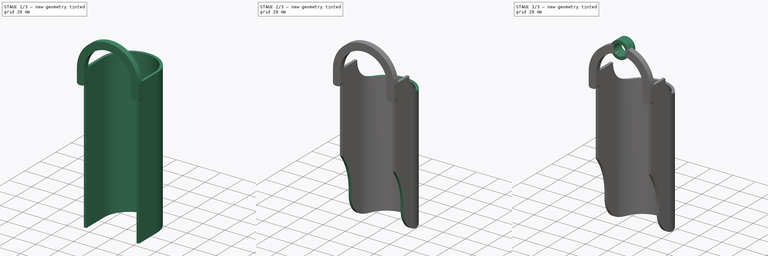
[diagram: build sequence overview — one tinted view per stage of 3, left to right]
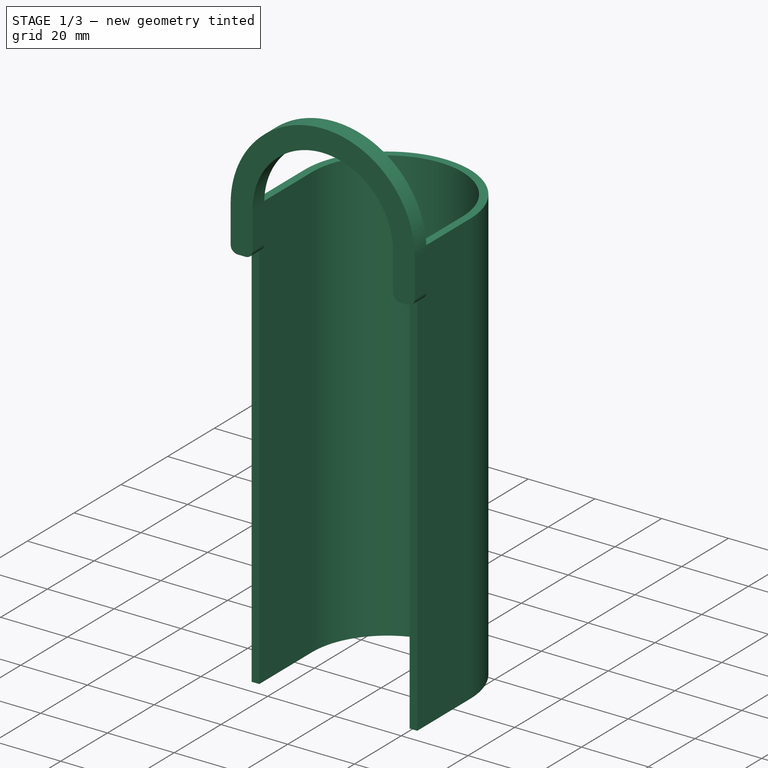
[diagram: stage 1 of 3 — iso view after this stage's code; geometry added in this stage tinted green]
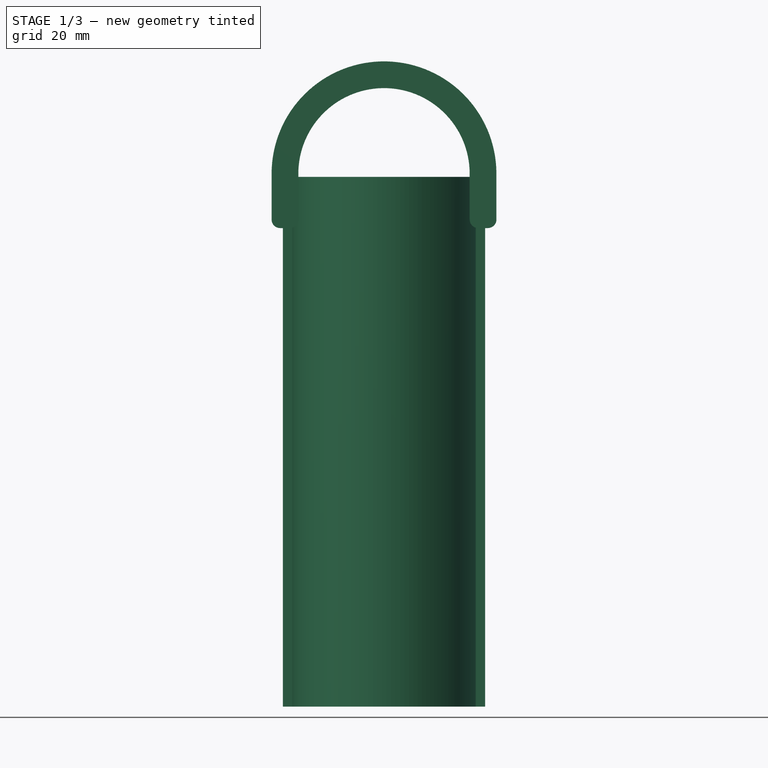
[diagram: stage 1 of 3 — front view after this stage's code; geometry added in this stage tinted green]
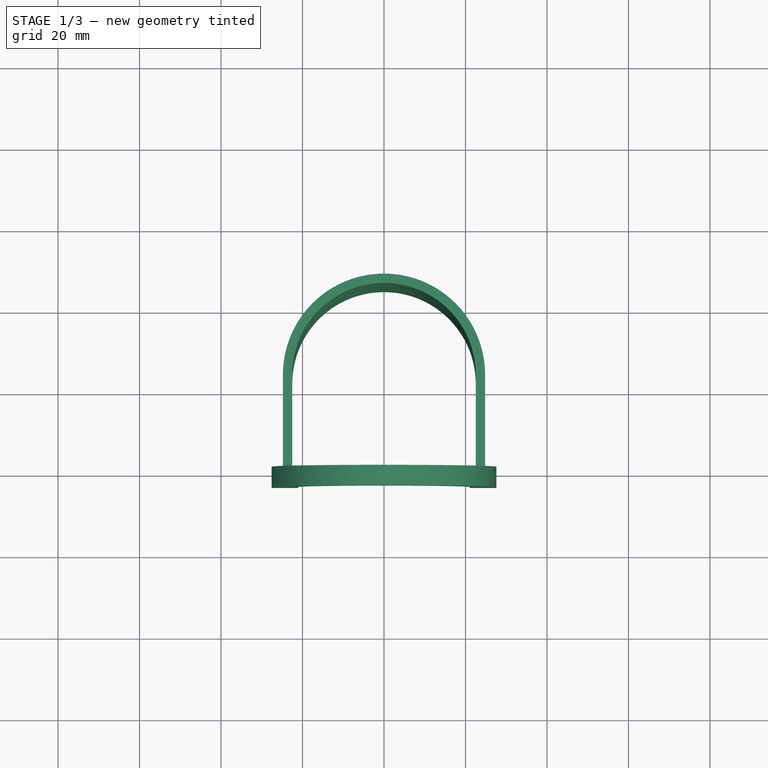
[diagram: stage 1 of 3 — top view after this stage's code; geometry added in this stage tinted green]
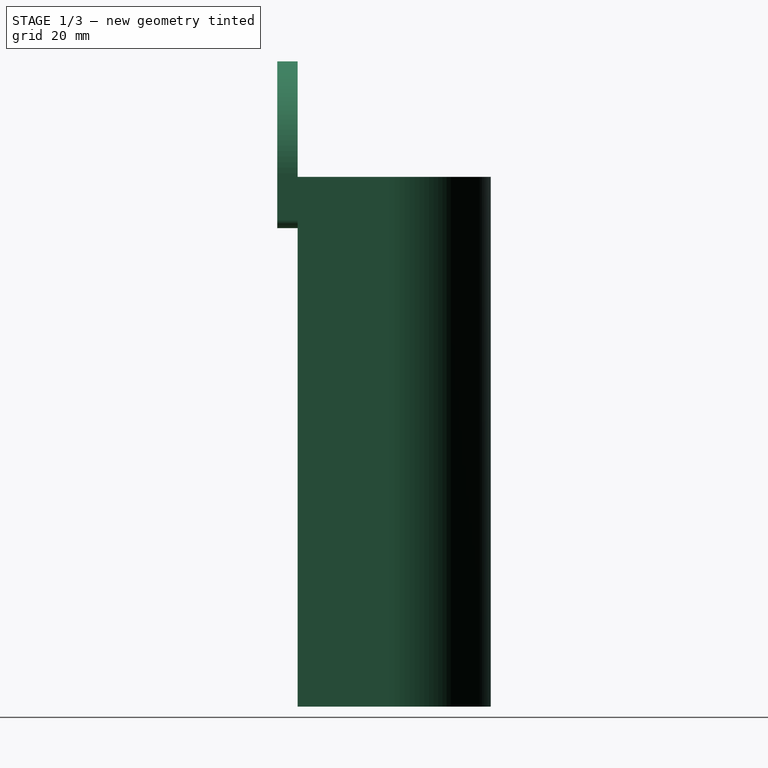
[diagram: stage 1 of 3 — right view after this stage's code; geometry added in this stage tinted green]
FCSTD DOCUMENT  (FreeCAD 0.21R33771 (Git))
Label: ex03
License: All rights reserved
LicenseURL: https://en.wikipedia.org/wiki/All_rights_reserved
objects: Sketcher::SketchObject×6, PartDesign::Pocket×4, PartDesign::Pad×3, PartDesign::Plane×1, PartDesign::Chamfer×1, PartDesign::Body×1
note: 24 computed .brp shape members not serialized (recipe doc carries the construction recipe); baked Part::Feature solids carry a one-line shape summary decoded from their .brp

FEATURE [Sketcher::SketchObject] Sketch
  FullyConstrained = false
  MapMode = 5
  Support = -> [XY_Plane]
  sketch-geometry (4):
    g0: LineSegment StartX=-24.8055 StartY=0 StartZ=0 EndX=24.8055 EndY=0 EndZ=0
    g1: LineSegment StartX=24.8055 StartY=0 StartZ=0 EndX=24.8055 EndY=22.6115 EndZ=0
    g2: LineSegment StartX=-24.8055 StartY=22.6115 StartZ=0 EndX=-24.8055 EndY=0 EndZ=0
    g3: ArcOfCircle CenterX=-3e-16 CenterY=22.6115 CenterZ=0 NormalX=0 NormalY=0 NormalZ=1 AngleXU=0 Radius=24.8055 StartAngle=0 EndAngle=3.14159
  constraints (7):
    c: Coincident(g0,g1)
    c: Coincident(g2,g0)
    c: Vertical(g1)
    c: Vertical(g2)
    c: PointOnObject(g0,g-1)
    c: Symmetric(g0,g0,g-2)
    c: Coincident(g3,g1)
FEATURE [PartDesign::Pad] Pad
  Direction = (0,0,1)
  Length = 130
  Length2 = 10
  Profile = -> Sketch
  ReferenceAxis = -> Sketch [N_Axis]
  Type = 0
FEATURE [Sketcher::SketchObject] Sketch001
  FullyConstrained = false
  MapMode = 5
  Support = -> [XY_Plane]
  sketch-geometry (4):
    g0: LineSegment StartX=-22.5156 StartY=0 StartZ=0 EndX=22.5156 EndY=0 EndZ=0
    g1: LineSegment StartX=22.5156 StartY=0 StartZ=0 EndX=22.5156 EndY=22.6115 EndZ=0
    g2: LineSegment StartX=-22.5156 StartY=22.7182 StartZ=0 EndX=-22.5156 EndY=0 EndZ=0
    g3: ArcOfCircle CenterX=-0.000128854 CenterY=22.6105 CenterZ=0 NormalX=0 NormalY=0 NormalZ=1 AngleXU=0 Radius=22.5158 StartAngle=4.39106e-05 EndAngle=3.13681
  constraints (8):
    c: Coincident(g0,g1)
    c: Coincident(g2,g0)
    c: Vertical(g1)
    c: Vertical(g2)
    c: PointOnObject(g0,g-1)
    c: Symmetric(g0,g0,g-2)
    c: Coincident(g3,g1)
    c: Coincident(g3,g2)
FEATURE [Sketcher::SketchObject] Sketch002
  FullyConstrained = false
  MapMode = 5
  Placement = pos=(0,0,0) rot=(1,0,0;1.5708rad)
  Support = -> [Pad]
  sketch-geometry (12):
    g0: LineSegment StartX=27.5859 StartY=130.883 StartZ=0 EndX=27.5859 EndY=119.525 EndZ=0
    g1: LineSegment StartX=25.4901 StartY=117.43 StartZ=0 EndX=23.1216 EndY=117.43 EndZ=0
    g2: LineSegment StartX=-27.5859 StartY=119.525 StartZ=0 EndX=-27.5859 EndY=130.883 EndZ=0
    g3: LineSegment StartX=-21.0259 StartY=119.525 StartZ=0 EndX=-21.0259 EndY=130.883 EndZ=0
    g4: LineSegment StartX=21.0259 StartY=130.883 StartZ=0 EndX=21.0259 EndY=119.525 EndZ=0
    g5: ArcOfCircle CenterX=0 CenterY=130.749 CenterZ=0 NormalX=0 NormalY=0 NormalZ=1 AngleXU=0 Radius=27.5862 StartAngle=0.00485634 EndAngle=3.13674
    g6: LineSegment StartX=-23.1216 StartY=117.43 StartZ=0 EndX=-25.4901 EndY=117.43 EndZ=0
    g7: ArcOfCircle CenterX=-25.4901 CenterY=119.525 CenterZ=0 NormalX=0 NormalY=0 NormalZ=1 AngleXU=0 Radius=2.09573 StartAngle=3.14159 EndAngle=4.71239
    g8: ArcOfCircle CenterX=-23.1216 CenterY=119.525 CenterZ=0 NormalX=0 NormalY=0 NormalZ=1 AngleXU=0 Radius=2.09573 StartAngle=4.71239 EndAngle=6.28319
    g9: ArcOfCircle CenterX=23.1216 CenterY=119.525 CenterZ=0 NormalX=0 NormalY=0 NormalZ=1 AngleXU=0 Radius=2.09573 StartAngle=3.14159 EndAngle=4.71239
    g10: ArcOfCircle CenterX=25.4901 CenterY=119.525 CenterZ=0 NormalX=0 NormalY=0 NormalZ=1 AngleXU=0 Radius=2.09573 StartAngle=4.71239 EndAngle=6.28319
    g11: ArcOfCircle CenterX=0 CenterY=130.749 CenterZ=0 NormalX=0 NormalY=0 NormalZ=1 AngleXU=0 Radius=21.0263 StartAngle=0.00637146 EndAngle=3.13522
  constraints (28):
    c: Vertical(g0)
    c: Vertical(g2)
    c: Vertical(g3)
    c: Vertical(g4)
    c: Horizontal(g3,g2)
    c: Coincident(g5,g2)
    c: Coincident(g5,g0)
    c: Tangent(g2,g7) = 1.5708
    c: Tangent(g6,g7) = 1.5708
    c: Tangent(g3,g8) = -1.5708
    c: Tangent(g6,g8) = 1.5708
    c: Tangent(g4,g9) = -1.5708
    c: Tangent(g1,g9) = 1.5708
    c: Tangent(g0,g10) = 1.5708
    c: Tangent(g1,g10) = 1.5708
    c: Equal(g10,g8)
    c: Equal(g8,g9)
    c: Equal(g9,g7)
    c: Coincident(g11,g3)
    c: PointOnObject(g5,g-2)
    c: Horizontal(g2,g0)
    c: Horizontal(g3,g11)
    c: Coincident(g11,g5)
    c: DistanceX(g2,g3) = 6.56
    c: Horizontal(g7,g8)
    c: Horizontal(g9,g10)
    c: Horizontal(g9,g8)
    c: Coincident(g11,g4)
FEATURE [PartDesign::Pocket] Pocket
  BaseFeature = -> Pad
  Direction = (0,0,-1)
  Length = 5
  Length2 = 5
  Midplane = true
  Profile = -> Sketch001
  ReferenceAxis = -> Sketch001 [N_Axis]
  Type = 1
FEATURE [PartDesign::Pad] Pad001
  BaseFeature = -> Pocket
  Direction = (0,-1,2e-16)
  Length = 5
  Length2 = 10
  Profile = -> Sketch002
  ReferenceAxis = -> Sketch002 [N_Axis]
  Type = 0
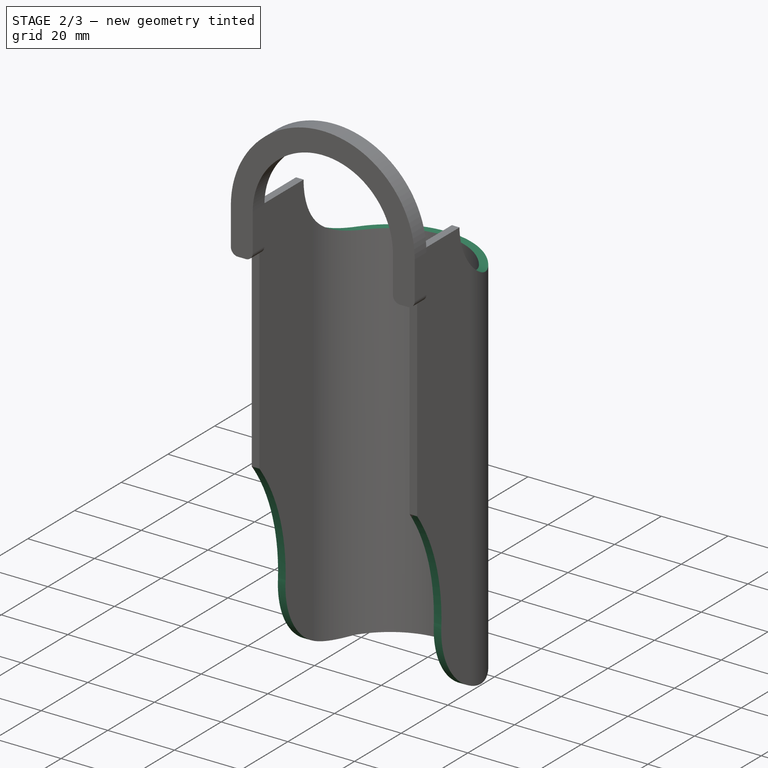
[diagram: stage 2 of 3 — iso view after this stage's code; geometry added in this stage tinted green]
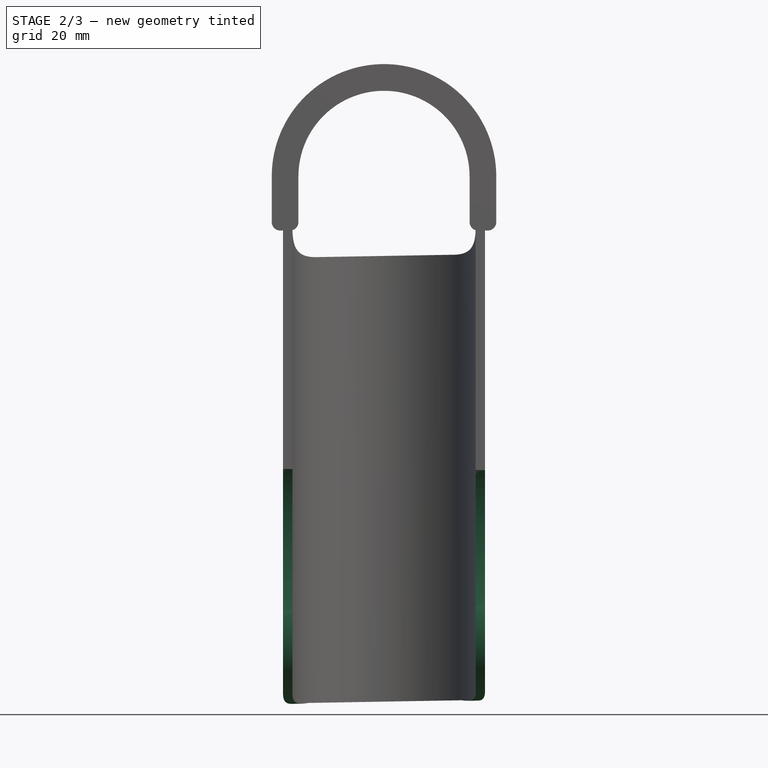
[diagram: stage 2 of 3 — front view after this stage's code; geometry added in this stage tinted green]
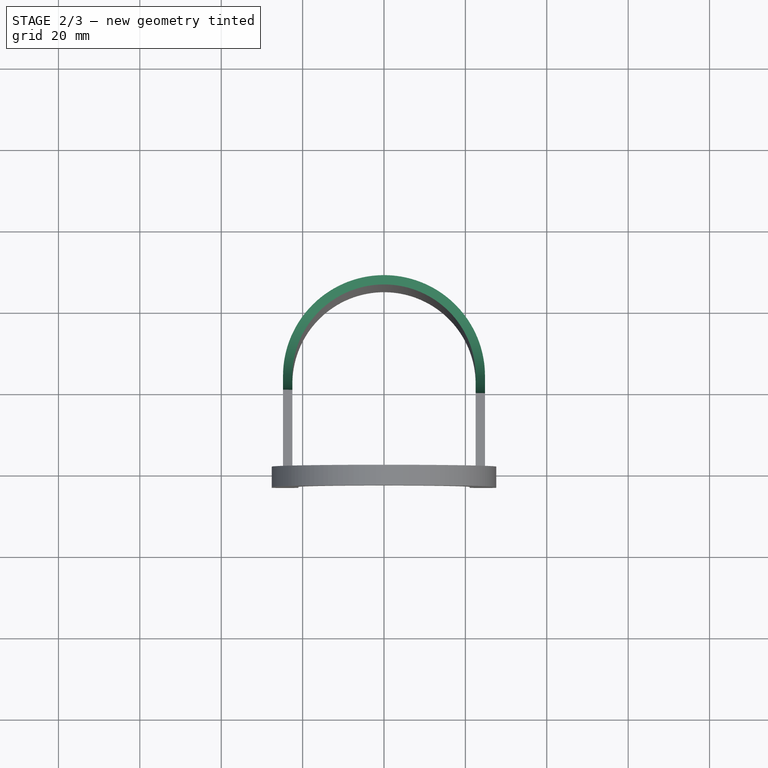
[diagram: stage 2 of 3 — top view after this stage's code; geometry added in this stage tinted green]
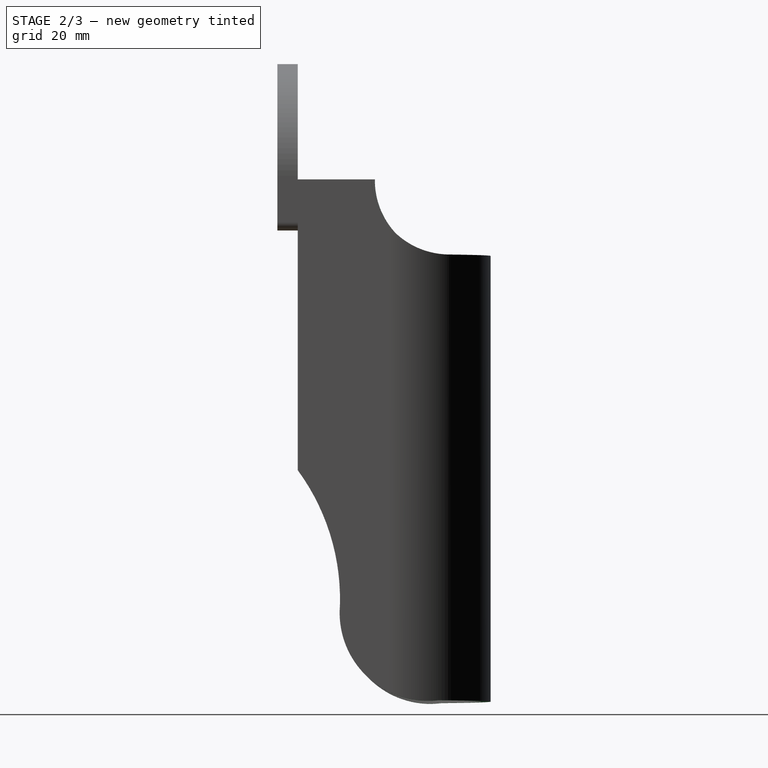
[diagram: stage 2 of 3 — right view after this stage's code; geometry added in this stage tinted green]
FEATURE [PartDesign::Plane] DatumPlane
  AttachmentOffset = pos=(2,0,0) rot=(0.008726,0.999925,-0.008575;1.58832rad)
  Length = 96.9647
  MapMode = 45
  Placement = pos=(2,38.4032,65) rot=(-0.567186,0.57735,-0.587338;2.0944rad)
  ResizeMode = 0
  Support = -> [Pad001]
  Width = 212.323
FEATURE [Sketcher::SketchObject] Sketch003
  ExternalGeometry = -> [Pad001]
  FullyConstrained = false
  MapMode = 5
  Placement = pos=(2,38.4032,65) rot=(0.567186,-0.57735,0.587338;4.18879rad)
  Support = -> [DatumPlane]
  sketch-geometry (4):
    g0: ArcOfCircle CenterX=-56.3496 CenterY=-65.2195 CenterZ=0 NormalX=0 NormalY=0 NormalZ=1 AngleXU=0 Radius=19 StartAngle=1.5708 EndAngle=4.71239
    g1: ArcOfCircle CenterX=0.893863 CenterY=-65.2195 CenterZ=0 NormalX=0 NormalY=0 NormalZ=1 AngleXU=0 Radius=19 StartAngle=4.71239 EndAngle=7.85398
    g2: LineSegment StartX=-56.3496 StartY=-84.2195 StartZ=0 EndX=0.893863 EndY=-84.2195 EndZ=0
    g3: LineSegment StartX=0.893863 StartY=-46.2195 StartZ=0 EndX=-56.3496 EndY=-46.2195 EndZ=0
  constraints (8):
    c: Tangent(g0,g2) = -1.5708
    c: Tangent(g2,g1) = -1.5708
    c: Tangent(g1,g3) = -1.5708
    c: Tangent(g3,g0) = -1.5708
    c: Equal(g0,g1)
    c: Angle(g-2,g2) = 1.5708
    c: Distance(g1,g1) = 19
    c: Distance(g1,g-3) = 38
FEATURE [PartDesign::Pocket] Pocket001
  BaseFeature = -> Pad001
  Direction = (-0.999695,0.0174524,-0.0174497)
  Length = 5
  Length2 = 5
  Midplane = true
  Profile = -> Sketch003
  ReferenceAxis = -> Sketch003 [N_Axis]
  Type = 1
FEATURE [Sketcher::SketchObject] Sketch004
  AttachmentOffset = pos=(0,-2,0) rot=(0,0,1;0rad)
  FullyConstrained = false
  MapMode = 5
  Placement = pos=(1.9651,38.4032,66.9997) rot=(0.567186,-0.57735,0.587338;4.18879rad)
  Support = -> [DatumPlane]
  sketch-geometry (6):
    g0: LineSegment StartX=3.57132 StartY=65.2805 StartZ=0 EndX=-29.5986 EndY=65.2805 EndZ=0
    g1: ArcOfCircle CenterX=6.17511 CenterY=43.9064 CenterZ=0 NormalX=0 NormalY=0 NormalZ=1 AngleXU=0 Radius=21.5322 StartAngle=6.2026 EndAngle=7.9752
    g2: ArcOfCircle CenterX=81.2373 CenterY=40.5518 CenterZ=0 NormalX=0 NormalY=0 NormalZ=1 AngleXU=0 Radius=53.6244 StartAngle=3.11135 EndAngle=4.65844
    g3: LineSegment StartX=78.346 StartY=-12.9947 StartZ=0 EndX=78.346 EndY=113.038 EndZ=0
    g4: LineSegment StartX=78.346 StartY=113.038 StartZ=0 EndX=-29.5986 EndY=113.038 EndZ=0
    g5: LineSegment StartX=-29.5986 StartY=113.038 StartZ=0 EndX=-29.5986 EndY=65.2805 EndZ=0
  constraints (9):
    c: Horizontal(g0)
    c: Coincident(g2,g1)
    c: Coincident(g3,g2)
    c: Vertical(g3)
    c: Coincident(g4,g3)
    c: Horizontal(g4)
    c: Coincident(g5,g4)
    c: Coincident(g5,g0)
    c: Vertical(g5)
FEATURE [PartDesign::Pocket] Pocket002
  BaseFeature = -> Pocket001
  Direction = (-0.999695,0.0174524,-0.0174497)
  Length = 5
  Length2 = 5
  Midplane = true
  Profile = -> Sketch004
  ReferenceAxis = -> Sketch004 [N_Axis]
  Type = 1
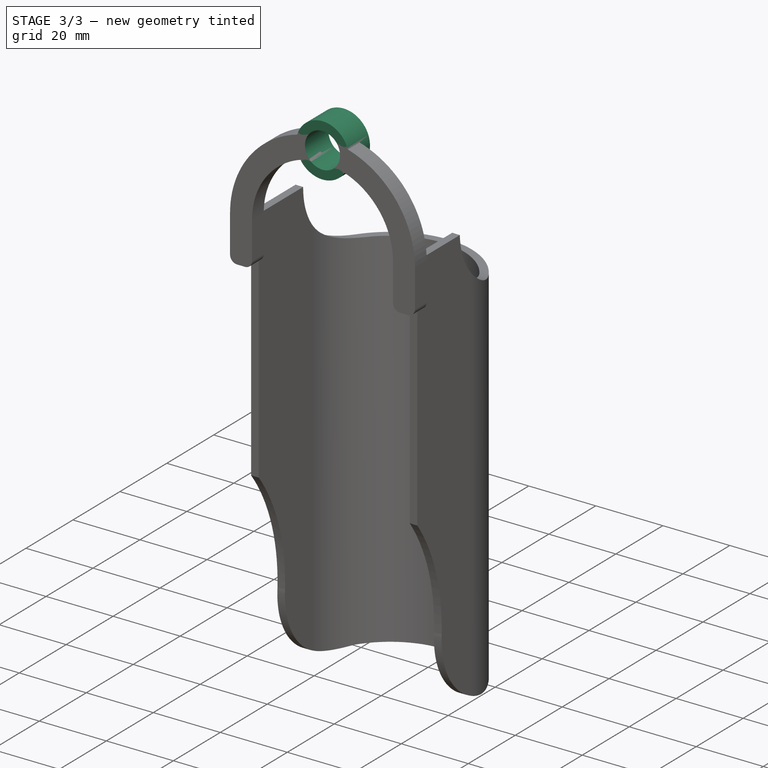
[diagram: stage 3 of 3 — iso view after this stage's code; geometry added in this stage tinted green]
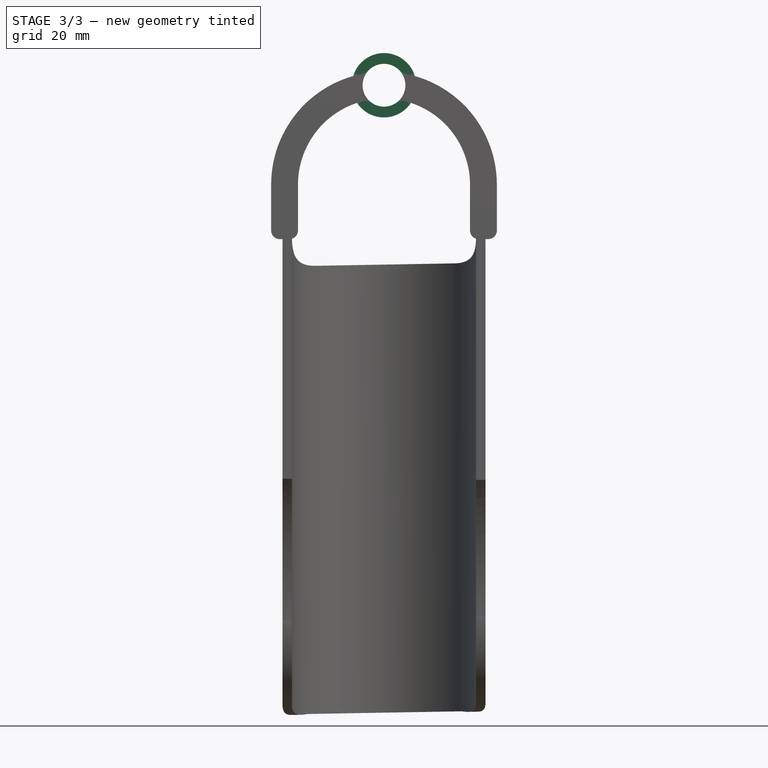
[diagram: stage 3 of 3 — front view after this stage's code; geometry added in this stage tinted green]
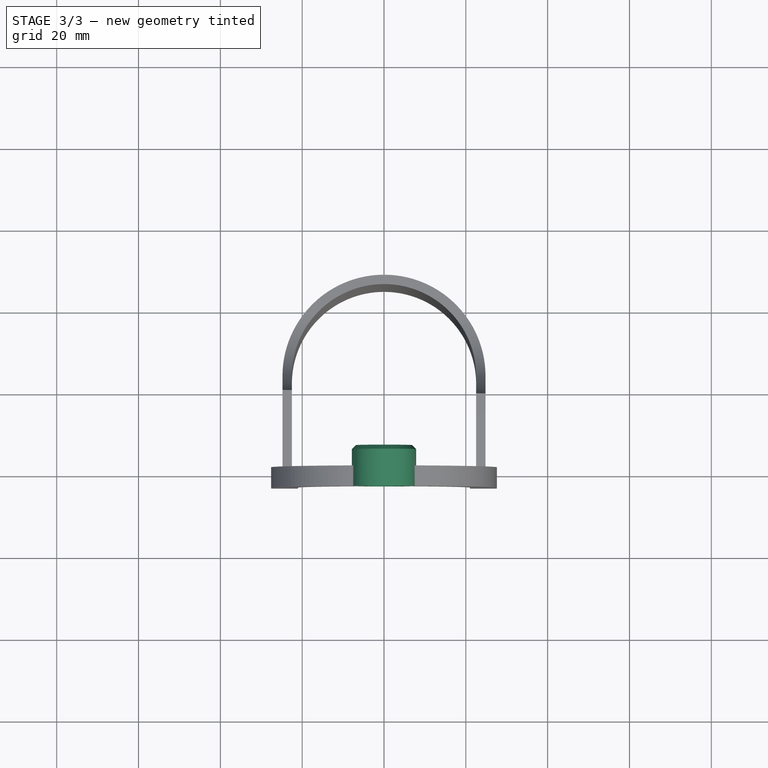
[diagram: stage 3 of 3 — top view after this stage's code; geometry added in this stage tinted green]
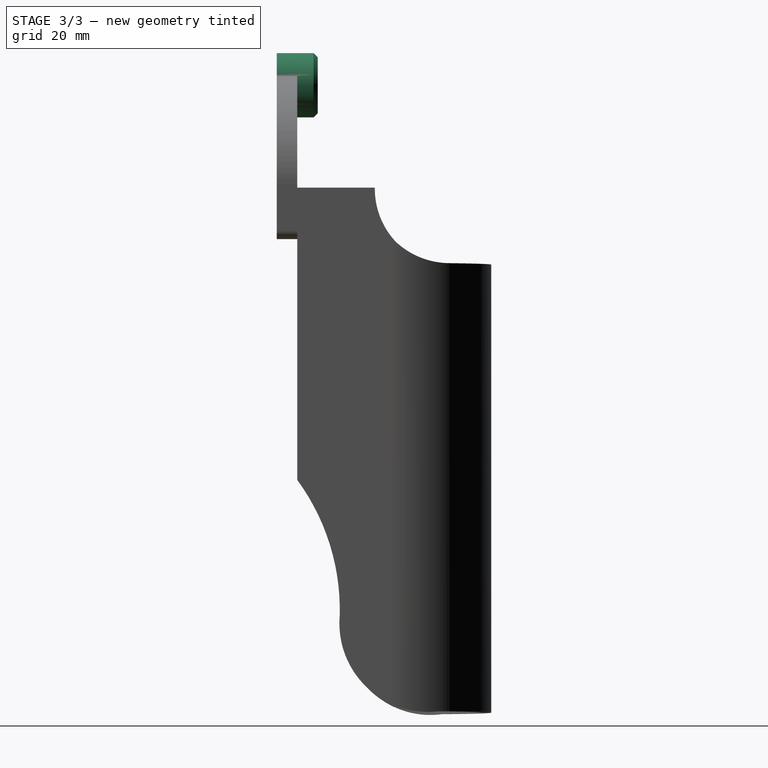
[diagram: stage 3 of 3 — right view after this stage's code; geometry added in this stage tinted green]
FEATURE [Sketcher::SketchObject] Sketch005
  FullyConstrained = false
  MapMode = 5
  Placement = pos=(0,0,0) rot=(0,0.707107,0.707107;3.14159rad)
  Support = -> [Pocket002]
  sketch-geometry (2):
    g0: Circle CenterX=0 CenterY=155.03 CenterZ=0 NormalX=0 NormalY=0 NormalZ=1 AngleXU=0 Radius=7.86629
    g1: Circle CenterX=0 CenterY=155.03 CenterZ=0 NormalX=0 NormalY=0 NormalZ=1 AngleXU=0 Radius=5.23063
  constraints (2):
    c: PointOnObject(g0,g-2)
    c: Coincident(g1,g0)
FEATURE [PartDesign::Pad] Pad002
  BaseFeature = -> Pocket002
  Direction = (0,1,-2e-16)
  Length = 10
  Length2 = 10
  Midplane = true
  Profile = -> Sketch005
  ReferenceAxis = -> Sketch005 [N_Axis]
  Type = 0
FEATURE [PartDesign::Pocket] Pocket003
  BaseFeature = -> Pad002
  Direction = (0,-1,2e-16)
  Length = 25
  Length2 = 5
  Midplane = true
  Profile = -> Pad002 [Edge106]
  Type = 0
FEATURE [PartDesign::Chamfer] Chamfer
  Angle = 45
  Base = -> Pocket003 [Edge69]
  BaseFeature = -> Pocket003
  ChamferType = 0
  FlipDirection = false
  Size = 1
  Size2 = 1
  SupportTransform = false
  UseAllEdges = false
FEATURE [PartDesign::Body] Body
  Group = -> [Sketch,Pad,Sketch001,Sketch002,Pocket,Pad001,DatumPlane,Sketch003,Pocket001,Sketch004,Pocket002,Sketch005,Pad002,Pocket003,Chamfer]
  Origin = -> Origin
  Tip = -> Chamfer
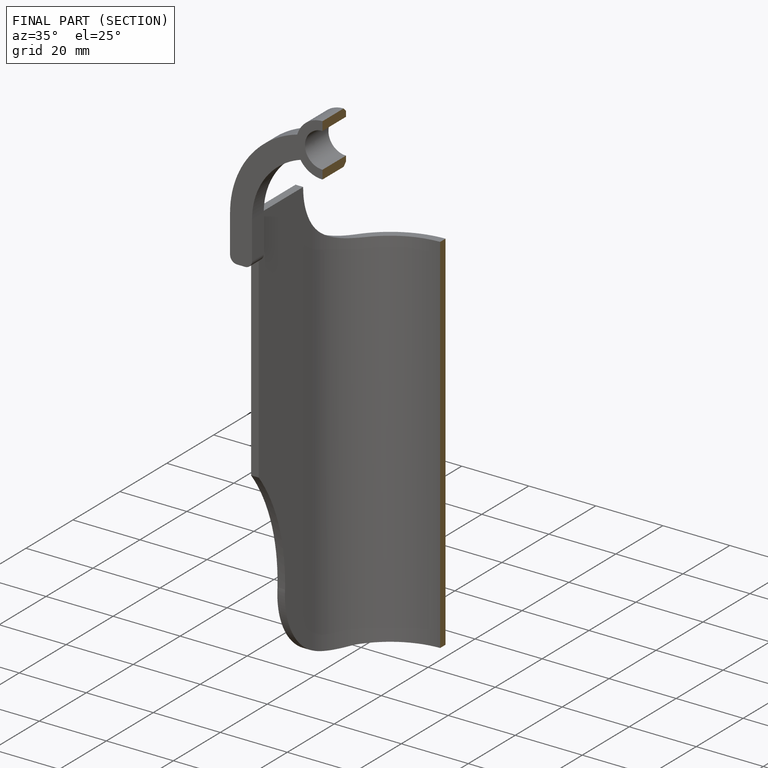
[diagram: finished part — half-section view (interior)]
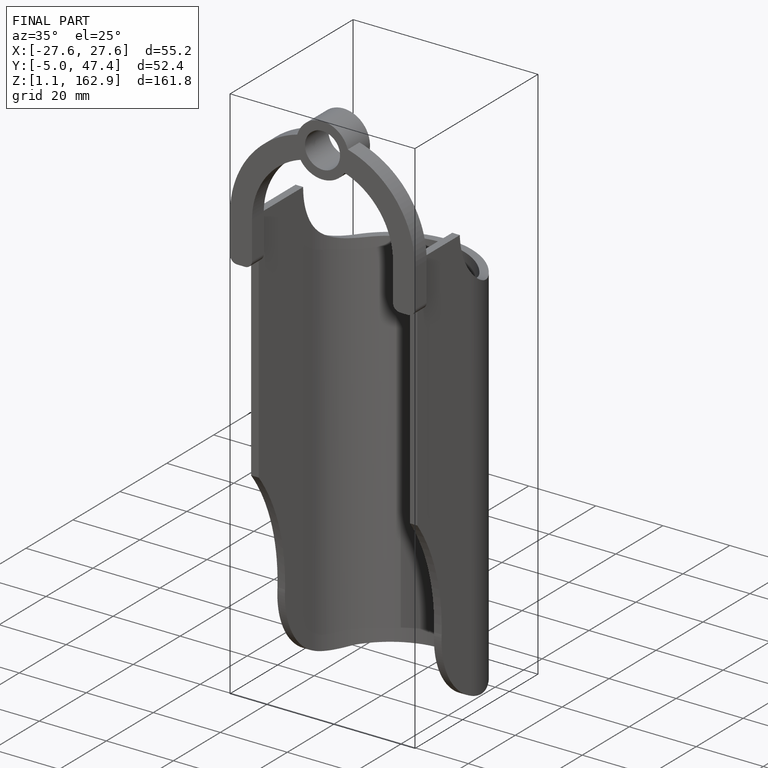
[diagram: finished part — iso view with bounding-box wireframe]
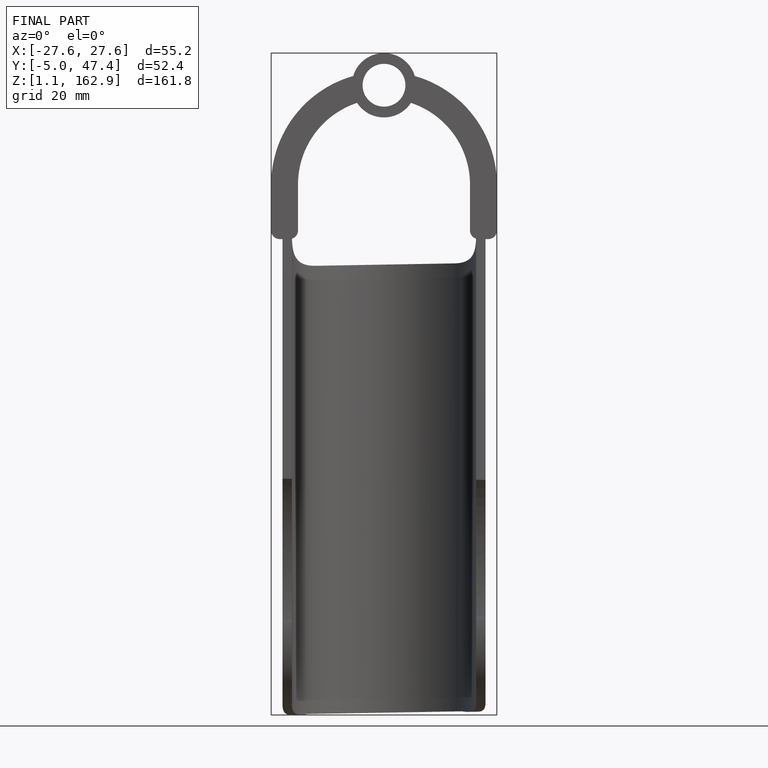
[diagram: finished part — front view with bounding-box wireframe]
